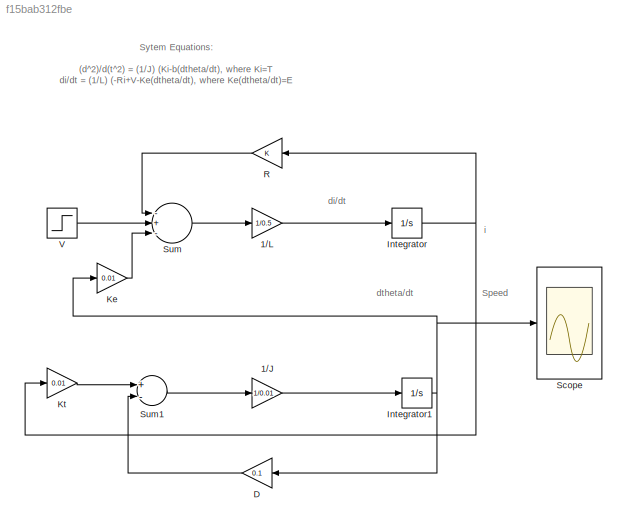
MODEL slx_f15bab312fbe
KIND model
BLOCK [Gain] 1//J
  Gain = 1/0.01
  OutDataTypeStr = Inherit: Inherit via internal rule
  ParamDataTypeStr = Inherit: Inherit via internal rule
  SaturateOnIntegerOverflow = off
BLOCK [Gain] 1//L
  Gain = 1/0.5
  OutDataTypeStr = Inherit: Inherit via internal rule
  ParamDataTypeStr = Inherit: Inherit via internal rule
  SaturateOnIntegerOverflow = off
BLOCK [Gain] D
  Gain = 0.1
  OutDataTypeStr = Inherit: Inherit via internal rule
  ParamDataTypeStr = Inherit: Inherit via internal rule
  SaturateOnIntegerOverflow = off
BLOCK [Integrator] Integrator
  Ports = [1, 1]
BLOCK [Integrator] Integrator1
  Ports = [1, 1]
BLOCK [Gain] Ke
  Gain = 0.01
  OutDataTypeStr = Inherit: Inherit via internal rule
  ParamDataTypeStr = Inherit: Inherit via internal rule
  SaturateOnIntegerOverflow = off
BLOCK [Gain] Kt
  Gain = 0.01
  OutDataTypeStr = Inherit: Inherit via internal rule
  ParamDataTypeStr = Inherit: Inherit via internal rule
  SaturateOnIntegerOverflow = off
BLOCK [Gain] R
  OutDataTypeStr = Inherit: Inherit via internal rule
  ParamDataTypeStr = Inherit: Inherit via internal rule
  SaturateOnIntegerOverflow = off
BLOCK [Scope] Scope
  Floating = off
  NumInputPorts = 1
  Ports = [1]
  ShowLegends = off
  YMax = 0.11
  YMin = -0.01
BLOCK [Sum] Sum
  InputSameDT = off
  Inputs = -+-
  OutDataTypeStr = Inherit: Inherit via internal rule
  Ports = [3, 1]
  SaturateOnIntegerOverflow = off
BLOCK [Sum] Sum1
  InputSameDT = off
  Inputs = +-
  OutDataTypeStr = Inherit: Inherit via internal rule
  Ports = [2, 1]
  SaturateOnIntegerOverflow = off
BLOCK [Step] V
  SampleTime = 0
ANNOTATION (root): Speed
ANNOTATION (root): Sytem Equations: (d^2)/d(t^2) = (1/J) (Ki-b(dtheta/dt), where Ki=T di/dt = (1/L) (-Ri+V-Ke(dtheta/dt), where Ke(dtheta/dt)=E
ANNOTATION (root): di/dt
ANNOTATION (root): dtheta/dt
ANNOTATION (root): i
LINE 1//J:1 -> Integrator1:1
LINE 1//L:1 -> Integrator:1
LINE D:1 -> Sum1:2
NET Integrator1:1 -> D:1, Ke:1, Scope:1
NET Integrator:1 -> Kt:1, R:1
LINE Ke:1 -> Sum:3
LINE Kt:1 -> Sum1:1
LINE R:1 -> Sum:1
LINE Sum1:1 -> 1//J:1
LINE Sum:1 -> 1//L:1
LINE V:1 -> Sum:2
note: NET lines group one-source signal fan-out (src -> all destinations, sorted); 1:1 wires keep LINE
